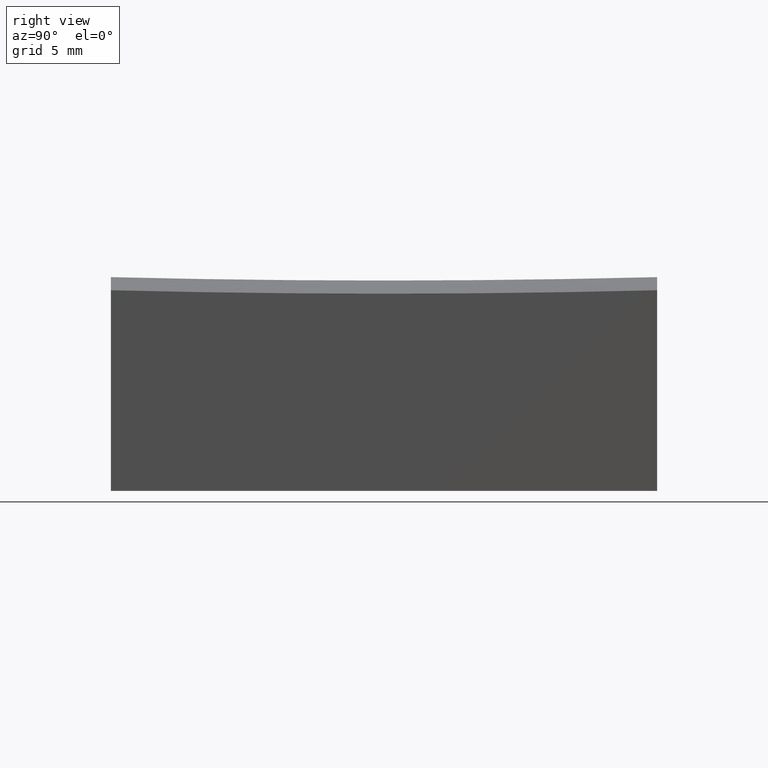
[diagram: clean part render]
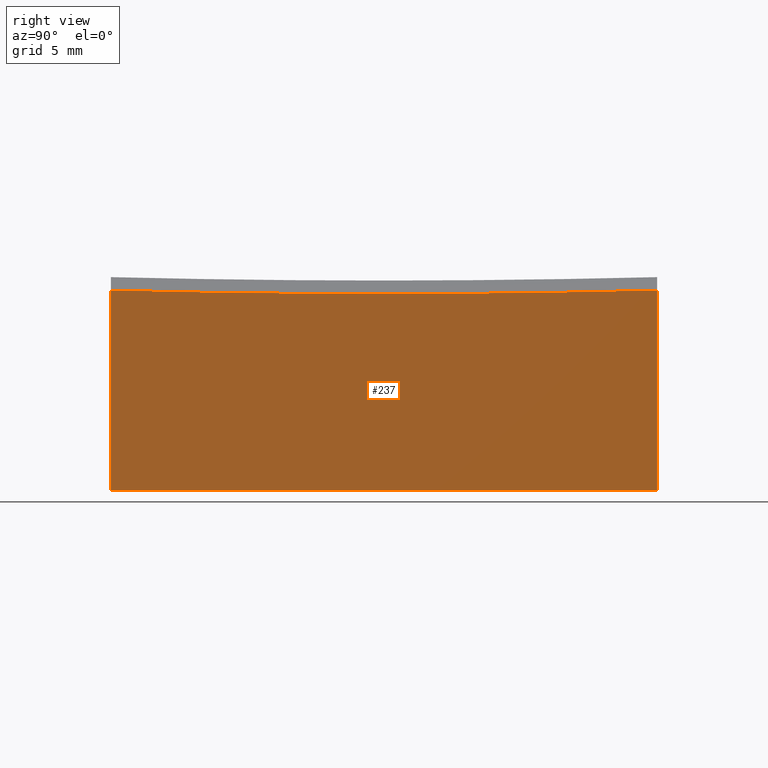
[diagram: same view with one face highlighted and labeled with its STEP entity id]
A machine part, right view. The second image highlights one B-rep face of the part: STEP entity #237.
In plain terms, the highlighted planar face has unit normal (-1, 0, 0).
Its self-contained STEP definition (entity closure, byte-faithful):
#9 = CARTESIAN_POINT ( 'NONE',  ( 10.00000000000000178, 0.000000000000000000, 499.0000000000000000 ) ) ;
#33 = CARTESIAN_POINT ( 'NONE',  ( 10.00000000000000178, -12.50000000000000000, 10.00000000000000000 ) ) ;
#48 = AXIS2_PLACEMENT_3D ( 'NONE', #74, #246, #142 ) ;
#57 = EDGE_CURVE ( 'NONE', #239, #133, #175, .T. ) ;
#66 = ORIENTED_EDGE ( 'NONE', *, *, #207, .T. ) ;
#70 = CARTESIAN_POINT ( 'NONE',  ( 10.00000000000000178, 12.50000000000000000, -0.8187171365233725240 ) ) ;
#71 = ORIENTED_EDGE ( 'NONE', *, *, #258, .T. ) ;
#73 = VECTOR ( 'NONE', #155, 1000.000000000000000 ) ;
#74 = CARTESIAN_POINT ( 'NONE',  ( 10.00000000000000178, 0.000000000000000000, 499.0000000000000000 ) ) ;
#82 = DIRECTION ( 'NONE',  ( 0.000000000000000000, 0.000000000000000000, 1.000000000000000000 ) ) ;
#83 = DIRECTION ( 'NONE',  ( -1.000000000000000000, 0.000000000000000000, 0.000000000000000000 ) ) ;
#96 = CARTESIAN_POINT ( 'NONE',  ( 10.00000000000000178, 0.000000000000000000, -0.9749993749686991507 ) ) ;
#112 = LINE ( 'NONE', #191, #138 ) ;
#114 = VECTOR ( 'NONE', #205, 1000.000000000000000 ) ;
#115 = CARTESIAN_POINT ( 'NONE',  ( 10.00000000000000178, -12.50000000000000000, -10.00000000000000000 ) ) ;
#120 = CARTESIAN_POINT ( 'NONE',  ( 10.00000000000000178, 12.50000000000000000, -10.00000000000000000 ) ) ;
#125 = EDGE_LOOP ( 'NONE', ( #173, #134, #66, #71, #170 ) ) ;
#128 = LINE ( 'NONE', #33, #73 ) ;
#133 = VERTEX_POINT ( 'NONE', #96 ) ;
#134 = ORIENTED_EDGE ( 'NONE', *, *, #57, .T. ) ;
#138 = VECTOR ( 'NONE', #202, 1000.000000000000000 ) ;
#142 = DIRECTION ( 'NONE',  ( 0.000000000000000000, 0.000000000000000000, 1.000000000000000000 ) ) ;
#155 = DIRECTION ( 'NONE',  ( -0.000000000000000000, -0.000000000000000000, -1.000000000000000000 ) ) ;
#160 = AXIS2_PLACEMENT_3D ( 'NONE', #249, #228, #82 ) ;
#163 = CARTESIAN_POINT ( 'NONE',  ( 10.00000000000000178, -12.50000000000000000, -10.00000000000000000 ) ) ;
#170 = ORIENTED_EDGE ( 'NONE', *, *, #219, .T. ) ;
#173 = ORIENTED_EDGE ( 'NONE', *, *, #197, .F. ) ;
#175 = CIRCLE ( 'NONE', #222, 499.9749993749687178 ) ;
#183 = PLANE ( 'NONE',  #160 ) ;
#190 = CIRCLE ( 'NONE', #48, 499.9749993749687178 ) ;
#191 = CARTESIAN_POINT ( 'NONE',  ( 10.00000000000000178, 12.50000000000000000, 10.00000000000000000 ) ) ;
#197 = EDGE_CURVE ( 'NONE', #239, #206, #112, .T. ) ;
#202 = DIRECTION ( 'NONE',  ( -0.000000000000000000, -0.000000000000000000, -1.000000000000000000 ) ) ;
#203 = VERTEX_POINT ( 'NONE', #231 ) ;
#205 = DIRECTION ( 'NONE',  ( 0.000000000000000000, 1.000000000000000000, 0.000000000000000000 ) ) ;
#206 = VERTEX_POINT ( 'NONE', #120 ) ;
#207 = EDGE_CURVE ( 'NONE', #133, #203, #190, .T. ) ;
#210 = FACE_OUTER_BOUND ( 'NONE', #125, .T. ) ;
#218 = VERTEX_POINT ( 'NONE', #163 ) ;
#219 = EDGE_CURVE ( 'NONE', #218, #206, #225, .T. ) ;
#222 = AXIS2_PLACEMENT_3D ( 'NONE', #9, #83, #247 ) ;
#225 = LINE ( 'NONE', #115, #114 ) ;
#228 = DIRECTION ( 'NONE',  ( -1.000000000000000000, 0.000000000000000000, 0.000000000000000000 ) ) ;
#231 = CARTESIAN_POINT ( 'NONE',  ( 10.00000000000000178, -12.50000000000000000, -0.8187171365233725240 ) ) ;
#237 = ADVANCED_FACE ( 'NONE', ( #210 ), #183, .F. ) ;
#239 = VERTEX_POINT ( 'NONE', #70 ) ;
#246 = DIRECTION ( 'NONE',  ( -1.000000000000000000, 0.000000000000000000, 0.000000000000000000 ) ) ;
#247 = DIRECTION ( 'NONE',  ( 0.000000000000000000, 0.000000000000000000, 1.000000000000000000 ) ) ;
#249 = CARTESIAN_POINT ( 'NONE',  ( 10.00000000000000178, -12.50000000000000000, 10.00000000000000000 ) ) ;
#258 = EDGE_CURVE ( 'NONE', #203, #218, #128, .T. ) ;